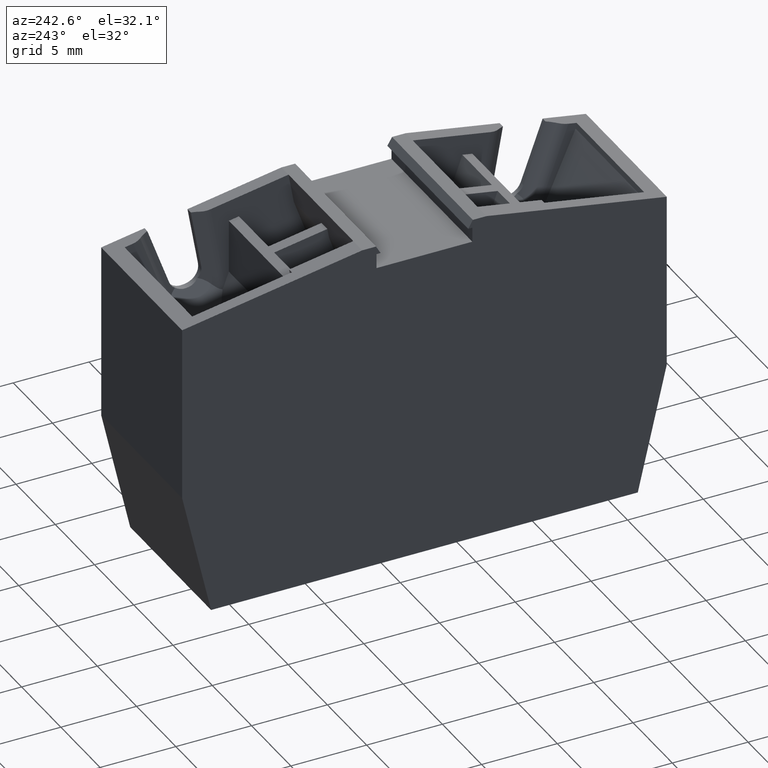
[diagram: clean part render]
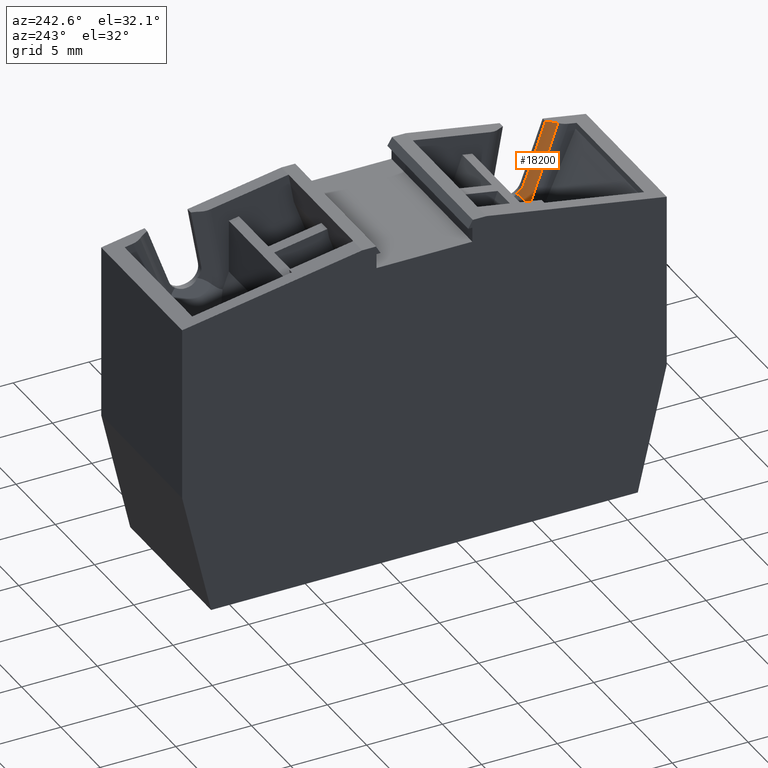
[diagram: same view with one face highlighted and labeled with its STEP entity id]
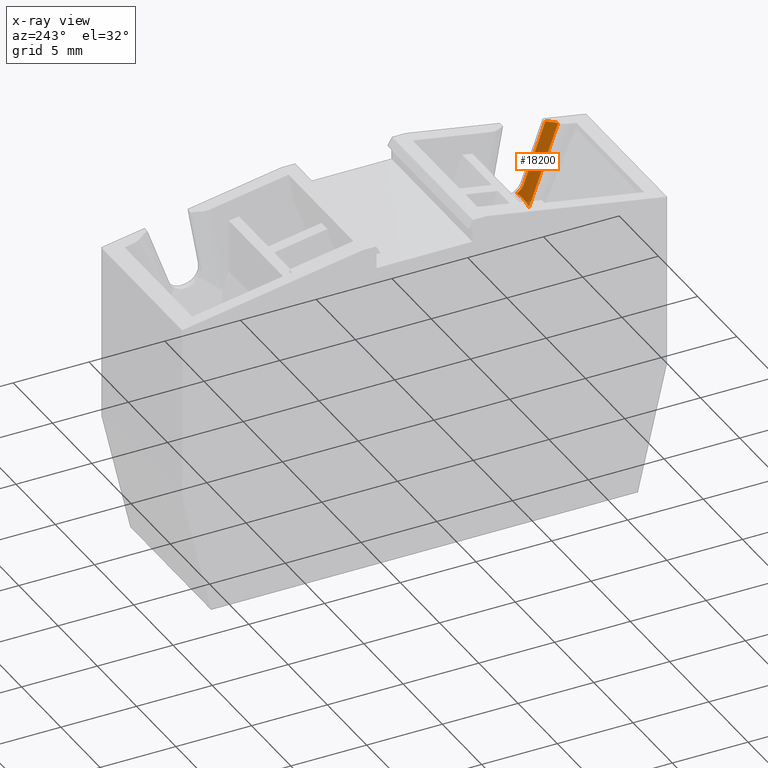
[diagram: x-ray of the same camera — body ghosted, the highlighted face saturated]
A machine part, auxiliary view. The second image highlights one B-rep face of the part: STEP entity #18200.
The next image is the same camera in x-ray: the body ghosted, the highlighted face saturated — about 2% of this face is hidden behind the body in this view.
In plain terms, the highlighted cylindrical surface (partial cylindrical patch) has radius 2.6154 mm, axis along (-0, 0.342, -0.9397).
Its self-contained STEP definition (entity closure, byte-faithful):
#6040=CARTESIAN_POINT('',(-10.9919648182782,124.452585341262,
55.7563349585074));
#6050=VERTEX_POINT('',#6040);
#6080=CARTESIAN_POINT('',(-10.8550636016755,122.887797275182,
57.8652228200317));
#6090=DIRECTION('',(-0.996194698091746,-0.0871557427476582,
2.28363742158728E-64));
#6100=DIRECTION('',(0.0871557427476582,-0.996194698091746,
9.44445787228913E-15));
#6110=AXIS2_PLACEMENT_3D('',#6080,#6090,#6100);
#6120=ELLIPSE('',#6110,2.65574601904712,2.61539926958888);
#6130=CARTESIAN_POINT('',(-10.9344408285825,123.795083130377,
55.4084248015002));
#6140=VERTEX_POINT('',#6130);
#6150=EDGE_CURVE('',#6050,#6140,#6120,.T.);
#6390=CARTESIAN_POINT('',(-11.363863344846,123.832652732413,
55.4084248015001));
#6400=DIRECTION('',(0.996194698091739,-0.0871557427477279,
1.70294172199495E-15));
#6410=VECTOR('',#6400,1.);
#6420=LINE('',#6390,#6410);
#6430=CARTESIAN_POINT('',(-6.71253439702589,123.425714179149,
55.4084248015001));
#6440=VERTEX_POINT('',#6430);
#6450=EDGE_CURVE('',#6140,#6440,#6420,.T.);
#17370=CARTESIAN_POINT('',(-11.3072132738095,124.480166007315,
55.7563349585072));
#17380=DIRECTION('',(0.99619469809174,-0.0871557427477279,
1.70294172199495E-15));
#17390=VECTOR('',#17380,1.);
#17400=LINE('',#17370,#17390);
#17410=CARTESIAN_POINT('',(-5.41646952331273,123.96479270941,
55.7563349585072));
#17420=VERTEX_POINT('',#17410);
#17430=EDGE_CURVE('',#6050,#17420,#17400,.T.);
#17640=CARTESIAN_POINT('',(-11.4420346533166,122.939150588019,
57.8652228200317));
#17650=DIRECTION('',(0.99619469809174,-0.0871557427477279,
1.70294172199495E-15));
#17660=DIRECTION('',(0.0206462217506481,0.235987394464108,
-0.971536763679823));
#17670=AXIS2_PLACEMENT_3D('',#17640,#17650,#17660);
#17680=CYLINDRICAL_SURFACE('',#17670,2.61539926958888);
#17690=CARTESIAN_POINT('',(-6.79969013977362,122.429519481057,
55.9499999999997));
#17700=DIRECTION('',(8.54723341358698E-16,-9.76953249612873E-15,-1.));
#17710=DIRECTION('',(-1.,6.99995617026161E-14,-8.54723341359382E-16));
#17720=AXIS2_PLACEMENT_3D('',#17690,#17700,#17710);
#17730=CYLINDRICAL_SURFACE('',#17720,1.);
#17740=CARTESIAN_POINT('',(-6.11958041507889,123.162629815438,
55.3415319494564));
#17750=CARTESIAN_POINT('',(-6.13965177279503,123.18125010345,
55.3461020245338));
#17760=CARTESIAN_POINT('',(-6.16045974982182,123.199018099428,
55.3506038235895));
#17770=CARTESIAN_POINT('',(-6.18190283997281,123.215864731062,
55.3549652395641));
#17780=CARTESIAN_POINT('',(-6.19262643737275,123.224289659275,
55.3571463649839));
#17790=CARTESIAN_POINT('',(-6.20349942349314,123.232477652538,
55.3592906722592));
#17800=CARTESIAN_POINT('',(-6.21453496742013,123.240440823894,
55.3613948022363));
#17810=CARTESIAN_POINT('',(-6.22557772834441,123.248409202984,
55.3635003082671));
#17820=CARTESIAN_POINT('',(-6.23681096447064,123.256171884034,
55.3655707664203));
#17830=CARTESIAN_POINT('',(-6.24822335476963,123.263716331349,
55.3675968375846));
#17840=CARTESIAN_POINT('',(-6.27104822878171,123.278805287733,
55.3716489964973));
#17850=CARTESIAN_POINT('',(-6.29459013651104,123.293019825187,
55.3755230388896));
#17860=CARTESIAN_POINT('',(-6.31874227115938,123.306268674199,
55.3791474635273));
#17870=CARTESIAN_POINT('',(-6.34289425191934,123.319517438795,
55.3827718650715));
#17880=CARTESIAN_POINT('',(-6.36765383792584,123.331798906768,
55.3861459547271));
#17890=CARTESIAN_POINT('',(-6.39289623391112,123.343039441514,
55.3892072510565));
#17900=CARTESIAN_POINT('',(-6.41813871550307,123.35428001438,
55.3922685577679));
#17910=CARTESIAN_POINT('',(-6.44386089500051,123.364478287074,
55.3950164795295));
#17920=CARTESIAN_POINT('',(-6.46992835809298,123.373583656494,
55.3974026423068));
#17930=CARTESIAN_POINT('',(-6.49599619562366,123.382689156705,
55.3997888393594));
#17940=CARTESIAN_POINT('',(-6.52240591165157,123.390700805642,
55.4018128939083));
#17950=CARTESIAN_POINT('',(-6.54902498351678,123.397593331256,
55.4034438558761));
#17960=CARTESIAN_POINT('',(-6.57562841706711,123.404481807612,
55.4050738596777));
#17970=CARTESIAN_POINT('',(-6.60264717811244,123.410305723046,
55.4063238551685));
#17980=CARTESIAN_POINT('',(-6.62995040114308,123.415008405972,
55.4071617252277));
#17990=CARTESIAN_POINT('',(-6.65725267335254,123.419710925129,
55.4079995661085));
#18000=CARTESIAN_POINT('',(-6.68483307694313,123.423290627677,
55.4084248015001));
#18010=CARTESIAN_POINT('',(-6.71253439702589,123.425714179149,
55.4084248015001));
#18020=B_SPLINE_CURVE_WITH_KNOTS('',3,(#17740,#17750,#17760,#17770,
#17780,#17790,#17800,#17810,#17820,#17830,#17840,#17850,#17860,#17870,
#17880,#17890,#17900,#17910,#17920,#17930,#17940,#17950,#17960,#17970,
#17980,#17990,#18000,#18010),.UNSPECIFIED.,.F.,.F.,(4,3,3,3,3,3,3,3,3,4)
,(0.,0.0830799953130093,0.124437163303375,0.165854092962835,
0.249046800021731,0.332450978584621,0.415747626834758,0.498654485262963,
0.581542533919053,0.664854387790411),.UNSPECIFIED.);
#18030=SURFACE_CURVE('',#18020,(#17730,#17680),.CURVE_3D.);
#18040=CARTESIAN_POINT('',(-6.11958041507923,123.162629815438,
55.3415319494564));
#18050=VERTEX_POINT('',#18040);
#18060=EDGE_CURVE('',#18050,#6440,#18030,.T.);
#18070=ORIENTED_EDGE('',*,*,#18060,.F.);
#18080=ORIENTED_EDGE('',*,*,#6450,.T.);
#18090=ORIENTED_EDGE('',*,*,#6150,.T.);
#18100=ORIENTED_EDGE('',*,*,#17430,.F.);
#18110=CARTESIAN_POINT('',(-1.31777725791795,122.053392839302,
57.8652228200318));
#18120=DIRECTION('',(-0.472295730075234,-0.0413205222131411,
0.880471099921364));
#18130=DIRECTION('',(-0.877158170201721,0.120374059335834,
-0.464869476614009));
#18140=AXIS2_PLACEMENT_3D('',#18110,#18120,#18130);
#18150=ELLIPSE('',#18140,5.6016600091462,2.61539926958888);
#18160=EDGE_CURVE('',#17420,#18050,#18150,.T.);
#18170=ORIENTED_EDGE('',*,*,#18160,.F.);
#18180=EDGE_LOOP('',(#18170,#18100,#18090,#18080,#18070));
#18190=FACE_OUTER_BOUND('',#18180,.T.);
#18200=ADVANCED_FACE('',(#18190),#17680,.F.);